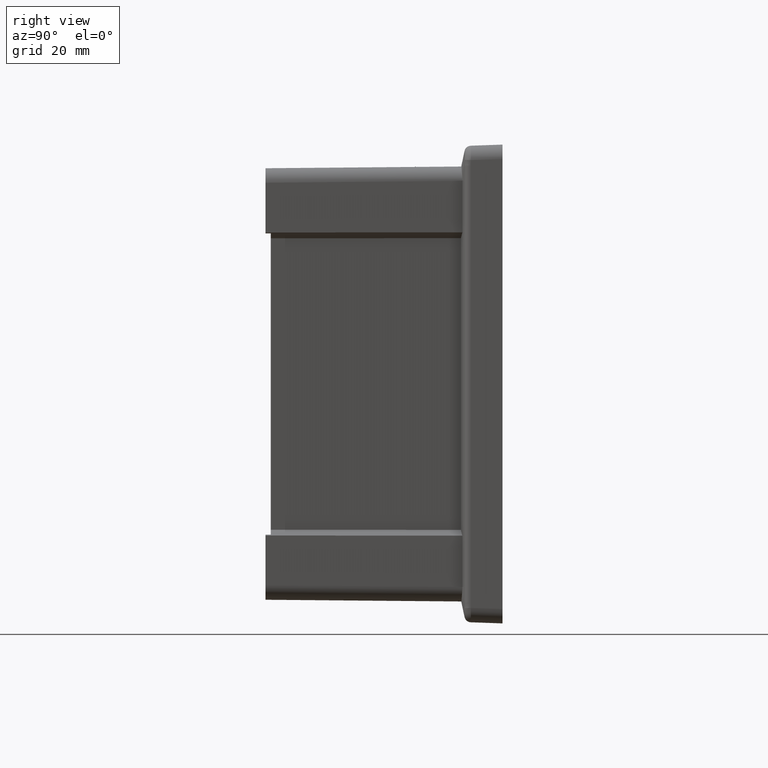
[diagram: clean part render]
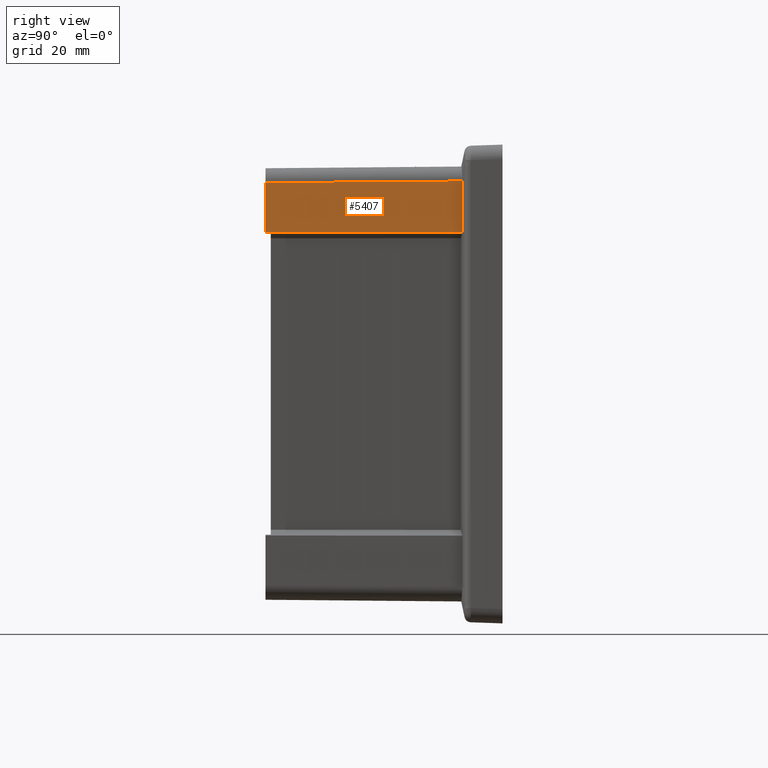
[diagram: same view with one face highlighted and labeled with its STEP entity id]
A machine part, right view. The second image highlights one B-rep face of the part: STEP entity #5407.
In plain terms, the highlighted planar face has unit normal (1, -0.0087, 0).
Its self-contained STEP definition (entity closure, byte-faithful):
#3 = ORIENTED_EDGE ( 'NONE', *, *, #4230, .F. ) ;
#82 = DIRECTION ( 'NONE',  ( 1.668429395069013400E-015, 3.546356156050595500E-016, -1.000000000000000000 ) ) ;
#921 = LINE ( 'NONE', #13694, #4114 ) ;
#1055 = ORIENTED_EDGE ( 'NONE', *, *, #1829, .T. ) ;
#1829 = EDGE_CURVE ( 'NONE', #12037, #12222, #9638, .T. ) ;
#3233 = PLANE ( 'NONE',  #11797 ) ;
#3331 = DIRECTION ( 'NONE',  ( 1.704742254906193500E-015, 0.0000000000000000000, -1.000000000000000000 ) ) ;
#3441 = VERTEX_POINT ( 'NONE', #11992 ) ;
#3752 = VERTEX_POINT ( 'NONE', #8922 ) ;
#4030 = CARTESIAN_POINT ( 'NONE',  ( 82.44786727501789900, -90.00000000000000000, 57.55894956458067200 ) ) ;
#4114 = VECTOR ( 'NONE', #10298, 999.9999999999998900 ) ;
#4230 = EDGE_CURVE ( 'NONE', #8150, #3752, #9131, .T. ) ;
#4293 = DIRECTION ( 'NONE',  ( 0.008726266127677998300, 0.9999310562397356600, -0.007857165312980527900 ) ) ;
#4546 = CARTESIAN_POINT ( 'NONE',  ( 83.10028038032489000, -15.24086293622857400, -90.92697228472619000 ) ) ;
#5396 = ORIENTED_EDGE ( 'NONE', *, *, #13535, .T. ) ;
#5407 = ADVANCED_FACE ( 'NONE', ( #12162 ), #3233, .T. ) ;
#5594 = LINE ( 'NONE', #10992, #13054 ) ;
#6232 = EDGE_LOOP ( 'NONE', ( #3, #5396, #1055, #7081, #10695 ) ) ;
#6283 = VECTOR ( 'NONE', #12039, 1000.000000000000100 ) ;
#6367 = CARTESIAN_POINT ( 'NONE',  ( 83.09831367871696300, -15.46622461865634300, 77.09852310186403200 ) ) ;
#7039 = EDGE_CURVE ( 'NONE', #3441, #3752, #921, .T. ) ;
#7081 = ORIENTED_EDGE ( 'NONE', *, *, #13131, .T. ) ;
#8150 = VERTEX_POINT ( 'NONE', #14414 ) ;
#8421 = LINE ( 'NONE', #6367, #6283 ) ;
#8596 = VECTOR ( 'NONE', #82, 1000.000000000000000 ) ;
#8922 = CARTESIAN_POINT ( 'NONE',  ( 83.10028038032466200, -15.24086293622863400, 57.60997106945469400 ) ) ;
#9131 = LINE ( 'NONE', #4546, #8596 ) ;
#9638 = LINE ( 'NONE', #12230, #11431 ) ;
#10298 = DIRECTION ( 'NONE',  ( 0.008726531827785089700, 0.9999615024563482900, 0.0009171954542809199500 ) ) ;
#10695 = ORIENTED_EDGE ( 'NONE', *, *, #7039, .T. ) ;
#10992 = CARTESIAN_POINT ( 'NONE',  ( 82.46364654158327300, -88.19187514424193400, 57.54474184914914800 ) ) ;
#11176 = DIRECTION ( 'NONE',  ( 0.9999619230641713100, -0.008726535498373953800, 1.665271126101437100E-015 ) ) ;
#11431 = VECTOR ( 'NONE', #3331, 1000.000000000000000 ) ;
#11797 = AXIS2_PLACEMENT_3D ( 'NONE', #12281, #11176, #12337 ) ;
#11992 = CARTESIAN_POINT ( 'NONE',  ( 82.46532101059942500, -88.00000000000000000, 57.54323415047497300 ) ) ;
#12037 = VERTEX_POINT ( 'NONE', #12516 ) ;
#12039 = DIRECTION ( 'NONE',  ( -0.008726203243944224300, -0.9999238504775704900, -0.008726203243944238200 ) ) ;
#12162 = FACE_OUTER_BOUND ( 'NONE', #6232, .T. ) ;
#12222 = VERTEX_POINT ( 'NONE', #4030 ) ;
#12230 = CARTESIAN_POINT ( 'NONE',  ( 82.44786727501787000, -90.00000000000000000, 81.96532101059936800 ) ) ;
#12281 = CARTESIAN_POINT ( 'NONE',  ( 83.11110922711581800, -14.00000000000000200, -90.92697228472619000 ) ) ;
#12337 = DIRECTION ( 'NONE',  ( 0.008726535498373953800, 0.9999619230641713100, 0.0000000000000000000 ) ) ;
#12516 = CARTESIAN_POINT ( 'NONE',  ( 82.44786727501788400, -90.00000000000000000, 76.44807669816491100 ) ) ;
#13054 = VECTOR ( 'NONE', #4293, 1000.000000000000100 ) ;
#13131 = EDGE_CURVE ( 'NONE', #12222, #3441, #5594, .T. ) ;
#13535 = EDGE_CURVE ( 'NONE', #8150, #12037, #8421, .T. ) ;
#13694 = CARTESIAN_POINT ( 'NONE',  ( 83.10992033791798400, -14.13623320830447300, 57.61098426982551500 ) ) ;
#14414 = CARTESIAN_POINT ( 'NONE',  ( 83.10028038032462000, -15.24086293622863200, 77.10048980347160400 ) ) ;